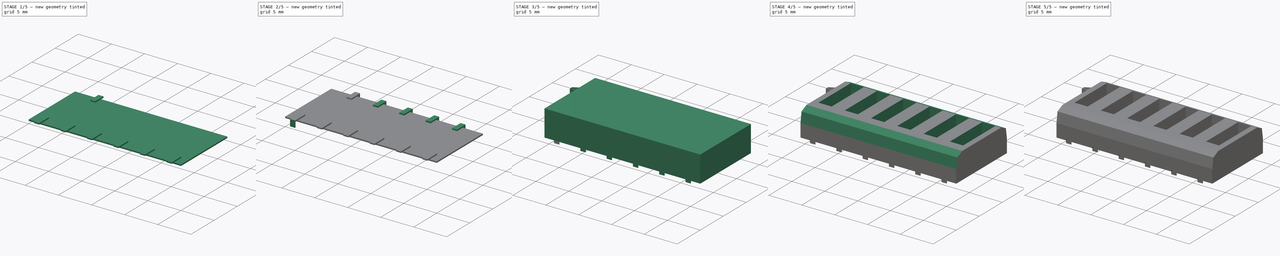
[diagram: build sequence overview — one tinted view per stage of 5, left to right]
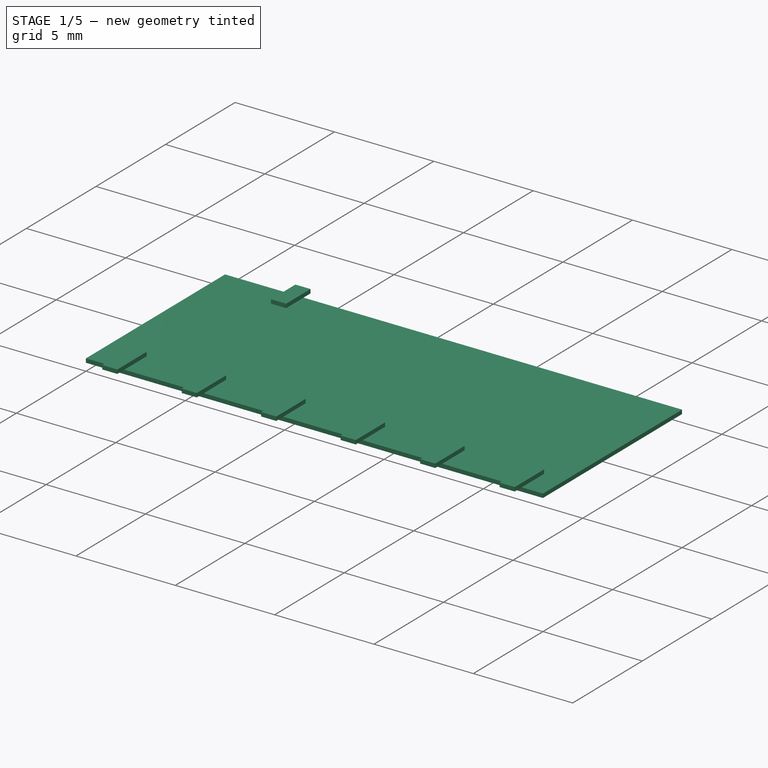
[diagram: stage 1 of 5 — iso view after this stage's code; geometry added in this stage tinted green]
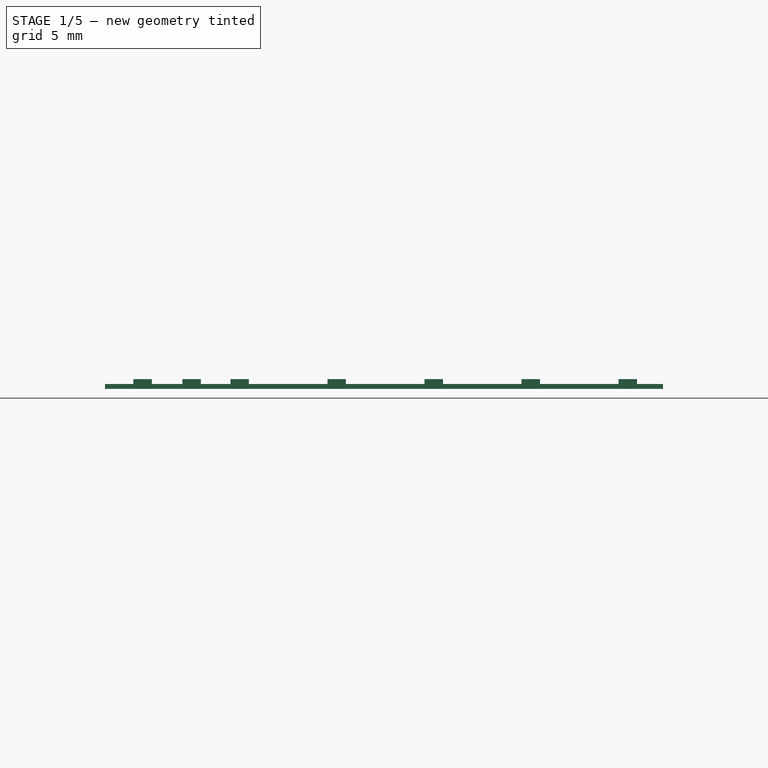
[diagram: stage 1 of 5 — front view after this stage's code; geometry added in this stage tinted green]
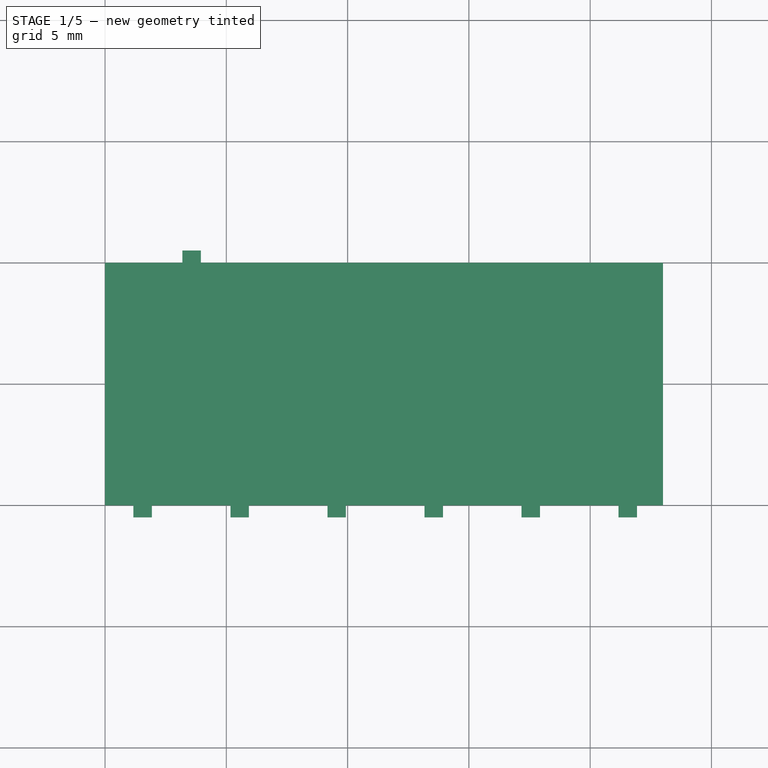
[diagram: stage 1 of 5 — top view after this stage's code; geometry added in this stage tinted green]
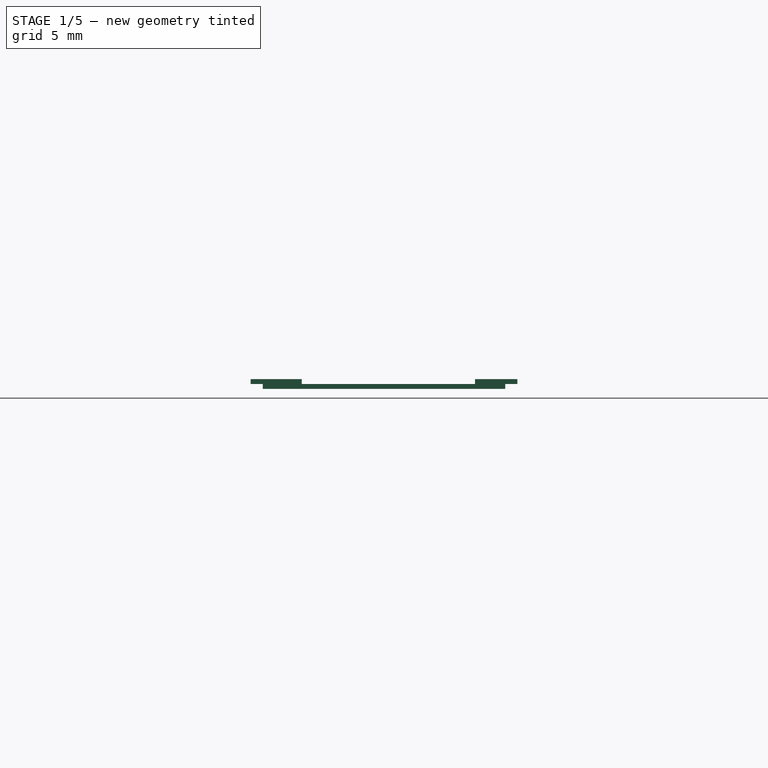
[diagram: stage 1 of 5 — right view after this stage's code; geometry added in this stage tinted green]
FCSTD DOCUMENT  (FreeCAD 0.19R24276 (Git))
Label: JL-6P-4.0PH-5.65H-1
License: All rights reserved
LicenseURL: http://en.wikipedia.org/wiki/All_rights_reserved
objects: Sketcher::SketchObject×10, PartDesign::Pad×7, PartDesign::LinearPattern×7, PartDesign::Pocket×3, PartDesign::Body×3, App::Part×3, PartDesign::Chamfer×2
note: 44 computed .brp shape members not serialized (recipe doc carries the construction recipe); baked Part::Feature solids carry a one-line shape summary decoded from their .brp

FEATURE [PartDesign::Body] Body001
  Group = -> [Sketch004,Pad001]
  Origin = -> Origin001
  Tip = -> Pad001
FEATURE [Sketcher::SketchObject] Sketch005
  FullyConstrained = true
  MapMode = 5
  Support = -> [XY_Plane002]
  sketch-geometry (4):
    g0: LineSegment StartX=0 StartY=0 StartZ=0 EndX=23 EndY=0 EndZ=0
    g1: LineSegment StartX=23 StartY=0 StartZ=0 EndX=23 EndY=-10 EndZ=0
    g2: LineSegment StartX=23 StartY=-10 StartZ=0 EndX=0 EndY=-10 EndZ=0
    g3: LineSegment StartX=0 StartY=-10 StartZ=0 EndX=0 EndY=0 EndZ=0
  constraints (11):
    c: Coincident(g0,g1)
    c: Coincident(g1,g2)
    c: Coincident(g2,g3)
    c: Coincident(g3,g0)
    c: Horizontal(g0)
    c: Horizontal(g2)
    c: Vertical(g1)
    c: Vertical(g3)
    c: DistanceX(g0,g0) = 23
    c: DistanceY(g3,g3) = 10
    c: Coincident(g0,g-1)
FEATURE [PartDesign::Pad] Pad002
  Direction = (1,1,1)
  Length = 0.2
  Length2 = 100
  Profile = -> Sketch005
  Type = 0
FEATURE [Sketcher::SketchObject] Sketch006
  ExternalGeometry = -> [Pad002]
  FullyConstrained = true
  MapMode = 5
  Placement = pos=(0,0,0.2) rot=(0,0,1;0rad)
  Support = -> [Pad002]
  sketch-geometry (4):
    g0: LineSegment StartX=1.17 StartY=-8.39 StartZ=0 EndX=1.93 EndY=-8.39 EndZ=0
    g1: LineSegment StartX=1.93 StartY=-8.39 StartZ=0 EndX=1.93 EndY=-10.5 EndZ=0
    g2: LineSegment StartX=1.93 StartY=-10.5 StartZ=0 EndX=1.17 EndY=-10.5 EndZ=0
    g3: LineSegment StartX=1.17 StartY=-10.5 StartZ=0 EndX=1.17 EndY=-8.39 EndZ=0
  constraints (12):
    c: Coincident(g0,g1)
    c: Coincident(g1,g2)
    c: Coincident(g2,g3)
    c: Coincident(g3,g0)
    c: Horizontal(g0)
    c: Horizontal(g2)
    c: Vertical(g1)
    c: Vertical(g3)
    c: DistanceX(g0,g0) = 0.76
    c: DistanceY(g3,g3) = 2.11
    c: DistanceX(g-2,g2) = 1.17
    c: Distance(g2,g-3) = 0.5
FEATURE [PartDesign::Pad] Pad003
  BaseFeature = -> Pad002
  Direction = (1,1,1)
  Length = 0.2
  Length2 = 100
  Profile = -> Sketch006
  Type = 0
FEATURE [PartDesign::LinearPattern] LinearPattern003
  BaseFeature = -> Pad003
  Direction = -> Sketch006 [H_Axis]
  Length = 20
  Occurrences = 6
  Originals = -> [Pad003]
FEATURE [Sketcher::SketchObject] Sketch007
  FullyConstrained = true
  MapMode = 5
  Placement = pos=(0,0,0.2) rot=(0,0,1;0rad)
  Support = -> [LinearPattern003]
  sketch-geometry (4):
    g0: LineSegment StartX=3.19 StartY=0.5 StartZ=0 EndX=3.95 EndY=0.5 EndZ=0
    g1: LineSegment StartX=3.95 StartY=0.5 StartZ=0 EndX=3.95 EndY=-1.25 EndZ=0
    g2: LineSegment StartX=3.95 StartY=-1.25 StartZ=0 EndX=3.19 EndY=-1.25 EndZ=0
    g3: LineSegment StartX=3.19 StartY=-1.25 StartZ=0 EndX=3.19 EndY=0.5 EndZ=0
  constraints (12):
    c: Coincident(g0,g1)
    c: Coincident(g1,g2)
    c: Coincident(g2,g3)
    c: Coincident(g3,g0)
    c: Horizontal(g0)
    c: Horizontal(g2)
    c: Vertical(g1)
    c: Vertical(g3)
    c: DistanceX(g0,g0) = 0.76
    c: DistanceY(g3,g3) = 1.75
    c: DistanceX(g-2,g0) = 3.19
    c: Distance(g0,g-1) = 0.5
FEATURE [PartDesign::Pad] Pad004
  BaseFeature = -> LinearPattern003
  Direction = (1,1,1)
  Length = 0.2
  Length2 = 100
  Profile = -> Sketch007
  Type = 0
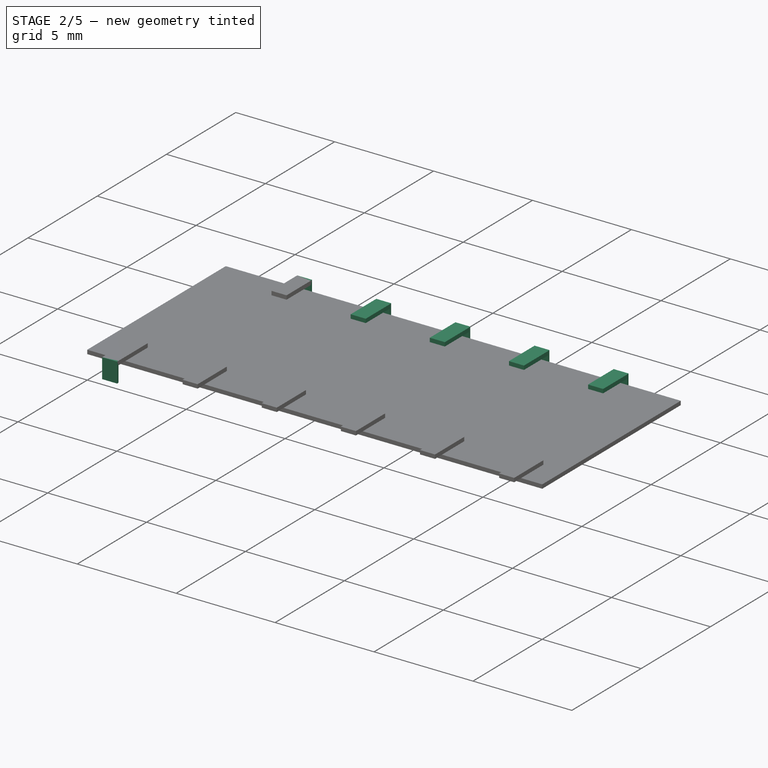
[diagram: stage 2 of 5 — iso view after this stage's code; geometry added in this stage tinted green]
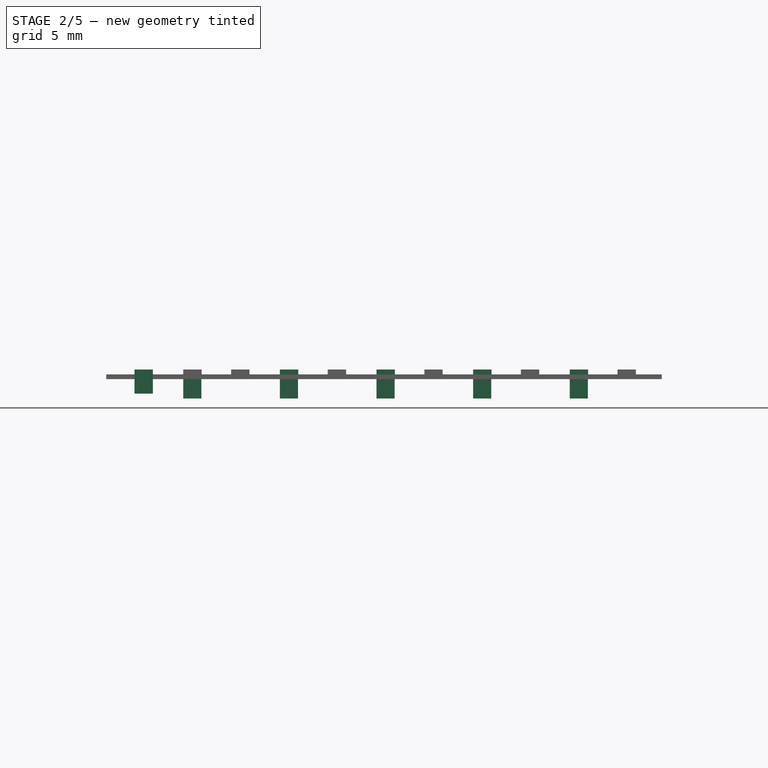
[diagram: stage 2 of 5 — front view after this stage's code; geometry added in this stage tinted green]
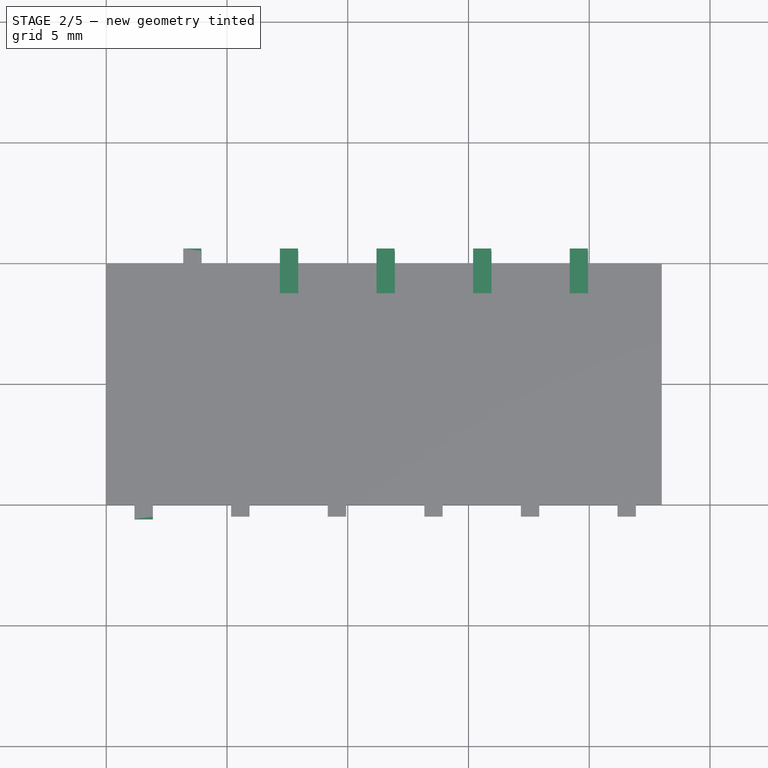
[diagram: stage 2 of 5 — top view after this stage's code; geometry added in this stage tinted green]
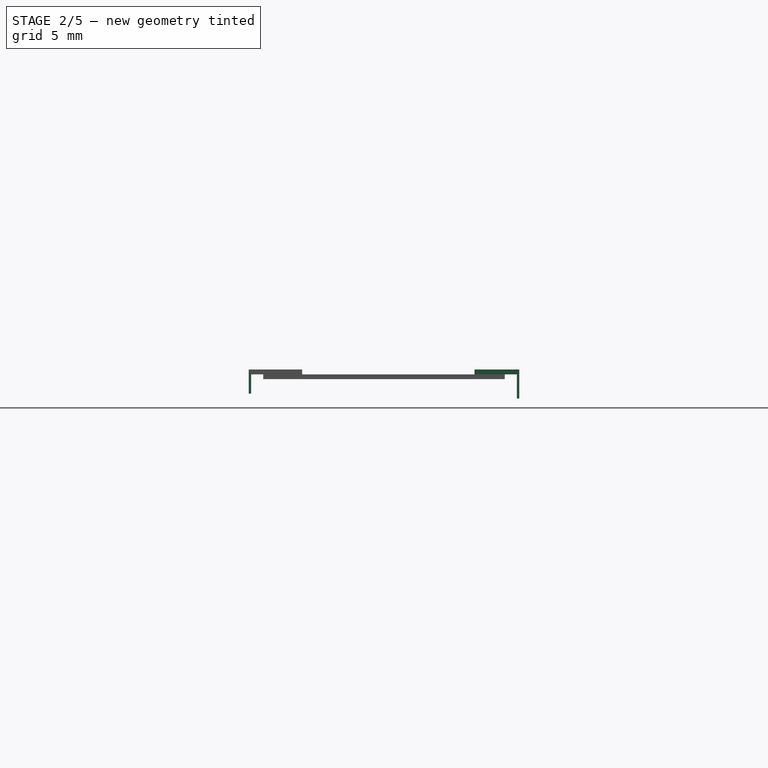
[diagram: stage 2 of 5 — right view after this stage's code; geometry added in this stage tinted green]
FEATURE [PartDesign::LinearPattern] LinearPattern004
  BaseFeature = -> Pad004
  Direction = -> X_Axis002
  Length = 16
  Occurrences = 5
  Originals = -> [Pad004]
FEATURE [Sketcher::SketchObject] Sketch008
  ExternalGeometry = -> [LinearPattern004]
  FullyConstrained = true
  MapMode = 5
  Placement = pos=(0,0,0.2) rot=(0,0,1;0rad)
  Support = -> [LinearPattern004]
  sketch-geometry (4):
    g0: LineSegment StartX=3.19 StartY=0.6 StartZ=0 EndX=3.94 EndY=0.6 EndZ=0
    g1: LineSegment StartX=3.94 StartY=0.6 StartZ=0 EndX=3.94 EndY=0.5 EndZ=0
    g2: LineSegment StartX=3.94 StartY=0.5 StartZ=0 EndX=3.19 EndY=0.5 EndZ=0
    g3: LineSegment StartX=3.19 StartY=0.5 StartZ=0 EndX=3.19 EndY=0.6 EndZ=0
  constraints (12):
    c: Coincident(g0,g1)
    c: Coincident(g1,g2)
    c: Coincident(g2,g3)
    c: Coincident(g3,g0)
    c: Horizontal(g0)
    c: Horizontal(g2)
    c: Vertical(g1)
    c: Vertical(g3)
    c: DistanceY(g3,g3) = 0.1
    c: DistanceX(g0,g0) = 0.75
    c: PointOnObject(g-3,g3)
    c: PointOnObject(g2,g-4)
FEATURE [PartDesign::Pad] Pad005
  BaseFeature = -> LinearPattern004
  Direction = (1,1,1)
  Length = 0.2
  Length2 = 1
  Profile = -> Sketch008
  Reversed = true
  Type = 4
FEATURE [PartDesign::LinearPattern] LinearPattern005
  BaseFeature = -> Pad005
  Direction = -> Sketch008 [H_Axis]
  Length = 16
  Occurrences = 5
  Originals = -> [Pad005]
FEATURE [App::Part] Part
  Group = -> [Body]
  Origin = -> Origin003
FEATURE [App::Part] Part001
  Group = -> [Body001]
  Origin = -> Origin004
FEATURE [Sketcher::SketchObject] Sketch009
  ExternalGeometry = -> [LinearPattern005]
  FullyConstrained = true
  MapMode = 5
  Placement = pos=(0,0,0.4) rot=(0,0,1;0rad)
  Support = -> [LinearPattern005]
  sketch-geometry (4):
    g0: LineSegment StartX=1.17 StartY=-10.5 StartZ=0 EndX=1.93 EndY=-10.5 EndZ=0
    g1: LineSegment StartX=1.93 StartY=-10.5 StartZ=0 EndX=1.93 EndY=-10.6 EndZ=0
    g2: LineSegment StartX=1.93 StartY=-10.6 StartZ=0 EndX=1.17 EndY=-10.6 EndZ=0
    g3: LineSegment StartX=1.17 StartY=-10.6 StartZ=0 EndX=1.17 EndY=-10.5 EndZ=0
  constraints (11):
    c: Coincident(g0,g1)
    c: Coincident(g1,g2)
    c: Coincident(g2,g3)
    c: Coincident(g3,g0)
    c: Horizontal(g0)
    c: Horizontal(g2)
    c: Vertical(g1)
    c: Vertical(g3)
    c: Coincident(g0,g-3)
    c: PointOnObject(g-3,g1)
    c: DistanceY(g3,g3) = 0.1
FEATURE [PartDesign::Pad] Pad006
  BaseFeature = -> LinearPattern005
  Direction = (1,1,1)
  Length = 1
  Length2 = 100
  Profile = -> Sketch009
  Reversed = true
  Type = 0
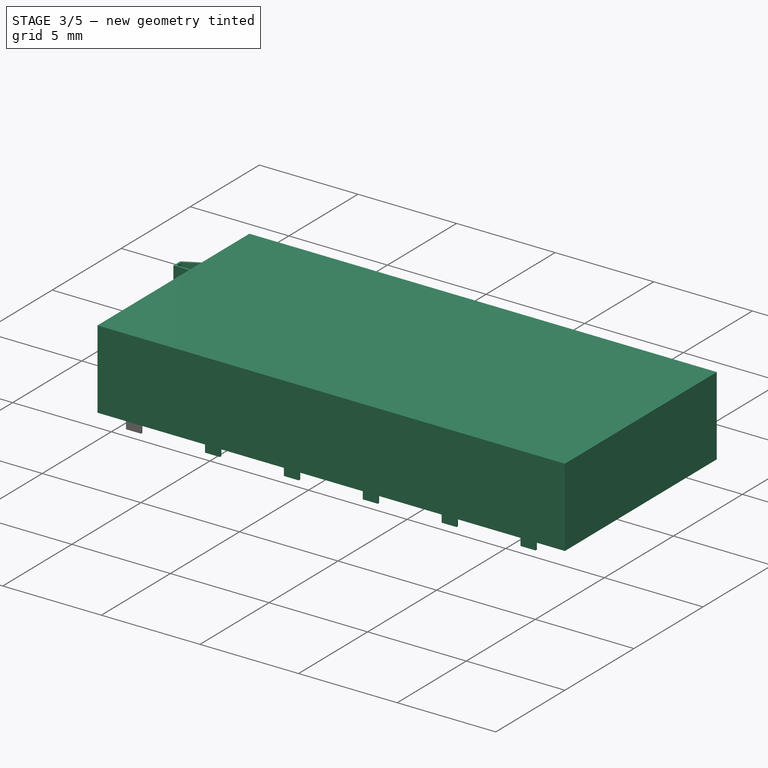
[diagram: stage 3 of 5 — iso view after this stage's code; geometry added in this stage tinted green]
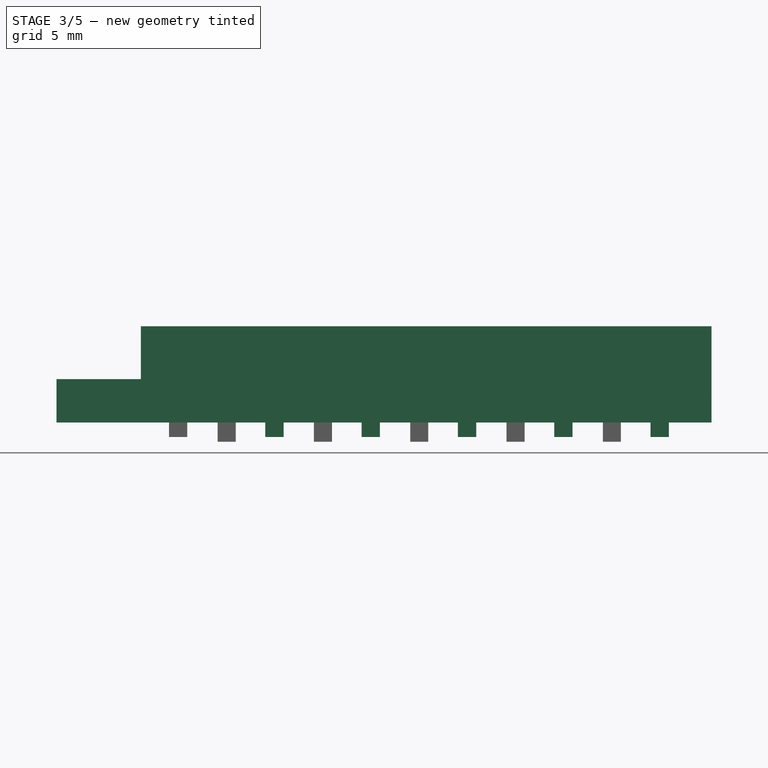
[diagram: stage 3 of 5 — front view after this stage's code; geometry added in this stage tinted green]
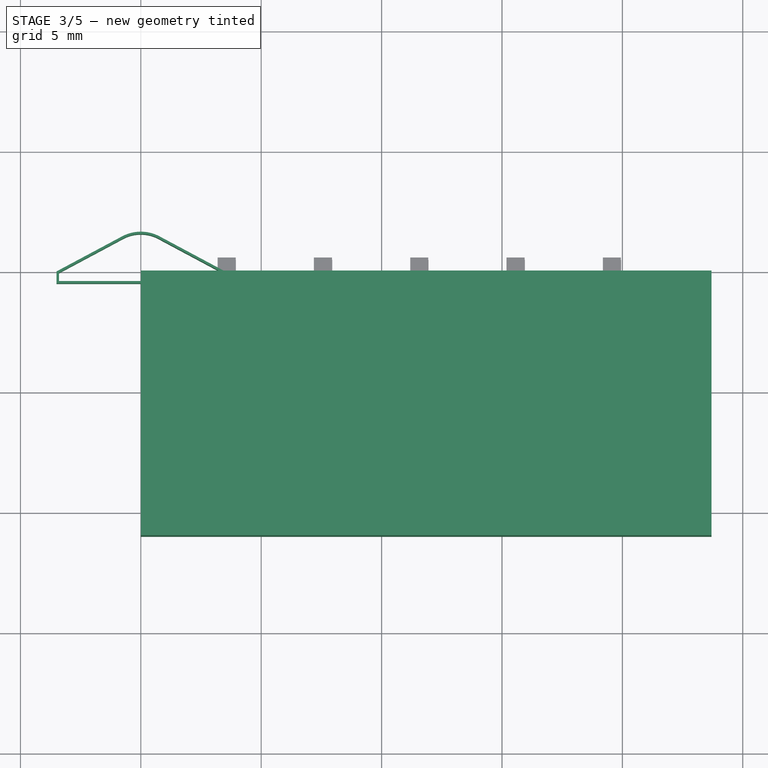
[diagram: stage 3 of 5 — top view after this stage's code; geometry added in this stage tinted green]
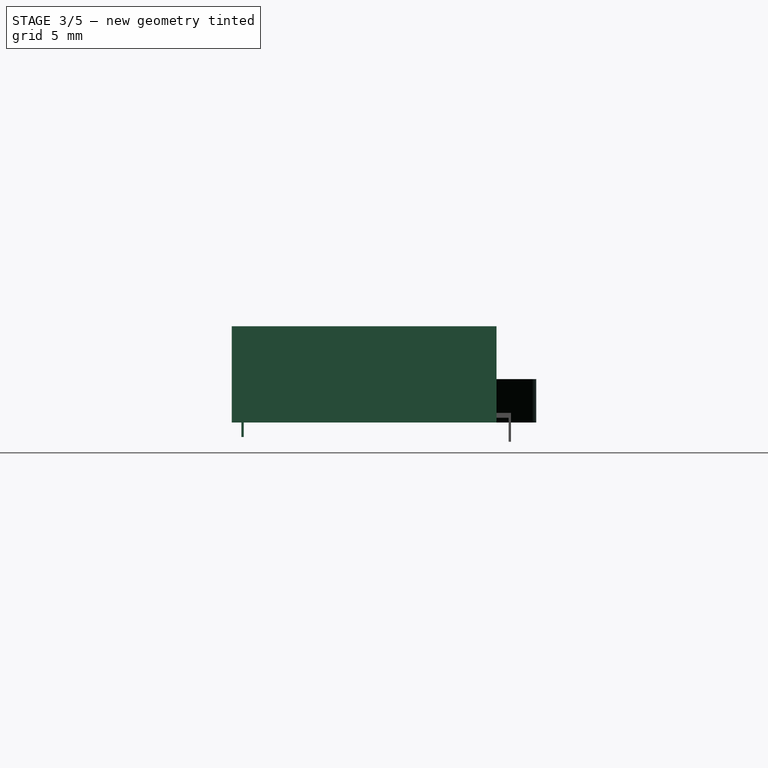
[diagram: stage 3 of 5 — right view after this stage's code; geometry added in this stage tinted green]
FEATURE [Sketcher::SketchObject] Sketch
  FullyConstrained = true
  MapMode = 5
  Support = -> [XY_Plane]
  sketch-geometry (4):
    g0: LineSegment StartX=0 StartY=0 StartZ=0 EndX=23.7 EndY=0 EndZ=0
    g1: LineSegment StartX=23.7 StartY=0 StartZ=0 EndX=23.7 EndY=-11 EndZ=0
    g2: LineSegment StartX=23.7 StartY=-11 StartZ=0 EndX=0 EndY=-11 EndZ=0
    g3: LineSegment StartX=0 StartY=-11 StartZ=0 EndX=0 EndY=0 EndZ=0
  constraints (11):
    c: Coincident(g0,g1)
    c: Coincident(g1,g2)
    c: Coincident(g2,g3)
    c: Coincident(g3,g0)
    c: Horizontal(g0)
    c: Horizontal(g2)
    c: Vertical(g1)
    c: Vertical(g3)
    c: DistanceX(g0,g0) = 23.7
    c: DistanceY(g3,g3) = 11
    c: Coincident(g0,g-1)
FEATURE [PartDesign::Pad] Pad
  Direction = (1,1,1)
  Length = 4
  Length2 = 100
  Profile = -> Sketch
  Type = 0
FEATURE [PartDesign::Body] Body
  Group = -> [Sketch,Pad,Chamfer,Chamfer001,Sketch001,Pocket,LinearPattern,Sketch002,Pocket001,LinearPattern001,Sketch003,Pocket002,LinearPattern002]
  Origin = -> Origin
  Tip = -> LinearPattern002
FEATURE [Sketcher::SketchObject] Sketch004
  FullyConstrained = true
  MapMode = 5
  Support = -> [XY_Plane001]
  sketch-geometry (12):
    g0: ArcOfCircle CenterX=0 CenterY=0 CenterZ=0 NormalX=0 NormalY=0 NormalZ=1 AngleXU=0 Radius=1.65 StartAngle=1.07989 EndAngle=2.06171
    g1: LineSegment StartX=-0.777857 StartY=1.45514 StartZ=0 EndX=-3.5 EndY=0 EndZ=0
    g2: LineSegment StartX=0.777857 StartY=1.45514 StartZ=0 EndX=3.5 EndY=0 EndZ=0
    g3: LineSegment StartX=-3.5 StartY=0 StartZ=0 EndX=-3.5 EndY=-0.5 EndZ=0
    g4: LineSegment StartX=-3.5 StartY=-0.5 StartZ=0 EndX=3.5 EndY=-0.5 EndZ=0
    g5: LineSegment StartX=3.5 StartY=-0.5 StartZ=0 EndX=3.5 EndY=0 EndZ=0
    g6: LineSegment StartX=-0.730725 StartY=1.36695 StartZ=0 EndX=-3.4 EndY=-0.0599352 EndZ=0
    g7: LineSegment StartX=-3.4 StartY=-0.0599352 StartZ=0 EndX=-3.4 EndY=-0.4 EndZ=0
    g8: LineSegment StartX=3.4 StartY=-0.0599352 StartZ=0 EndX=0.730714 EndY=1.36695 EndZ=0
    g9: ArcOfCircle CenterX=0 CenterY=0 CenterZ=0 NormalX=0 NormalY=0 NormalZ=1 AngleXU=0 Radius=1.55 StartAngle=1.07989 EndAngle=2.06171
    g10: LineSegment StartX=3.4 StartY=-0.0599352 StartZ=0 EndX=3.4 EndY=-0.4 EndZ=0
    g11: LineSegment StartX=-3.4 StartY=-0.4 StartZ=0 EndX=3.4 EndY=-0.4 EndZ=0
  constraints (32):
    c: Coincident(g0,g-1)
    c: Radius(g0) = 1.65
    c: Vertical(g3)
    c: Coincident(g4,g3)
    c: Horizontal(g4)
    c: Coincident(g5,g4)
    c: Vertical(g5)
    c: DistanceX(g4,g4) = 7
    c: Symmetric(g5,g3,g-2)
    c: PointOnObject(g3,g-1)
    c: DistanceY(g3,g3) = 0.5
    c: Tangent(g0,g2) = 1.5708
    c: Tangent(g1,g0) = -1.5708
    c: Coincident(g1,g3)
    c: Coincident(g2,g5)
    c: Coincident(g7,g6)
    c: Vertical(g7)
    c: Parallel(g6,g1)
    c: Parallel(g8,g2)
    c: Distance(g7,g4) = 0.1
    c: Coincident(g9,g6) = -1.5708
    c: Tangent(g9,g8) = -1.5708
    c: Coincident(g10,g8)
    c: Vertical(g10)
    c: Coincident(g11,g7)
    c: Coincident(g11,g10)
    c: Horizontal(g11)
    c: Equal(g10,g7)
    c: Distance(g6,g1) = 0.1
    c: Distance(g8,g2) = 0.1
    c: Distance(g6,g3) = 0.1
    c: Coincident(g9,g0)
FEATURE [PartDesign::Pad] Pad001
  Direction = (1,1,1)
  Length = 1.8
  Length2 = 100
  Profile = -> Sketch004
  Type = 0
FEATURE [PartDesign::LinearPattern] LinearPattern006
  BaseFeature = -> Pad006
  Direction = -> Sketch009 [H_Axis]
  Length = 20
  Occurrences = 6
  Originals = -> [Pad006]
FEATURE [PartDesign::Body] Body002
  Group = -> [Sketch005,Pad002,Sketch006,Pad003,LinearPattern003,Sketch007,Pad004,LinearPattern004,Sketch008,Pad005,LinearPattern005,Sketch009,Pad006,LinearPattern006]
  Origin = -> Origin002
  Tip = -> LinearPattern006
FEATURE [App::Part] Part002
  Group = -> [Body002]
  Origin = -> Origin005
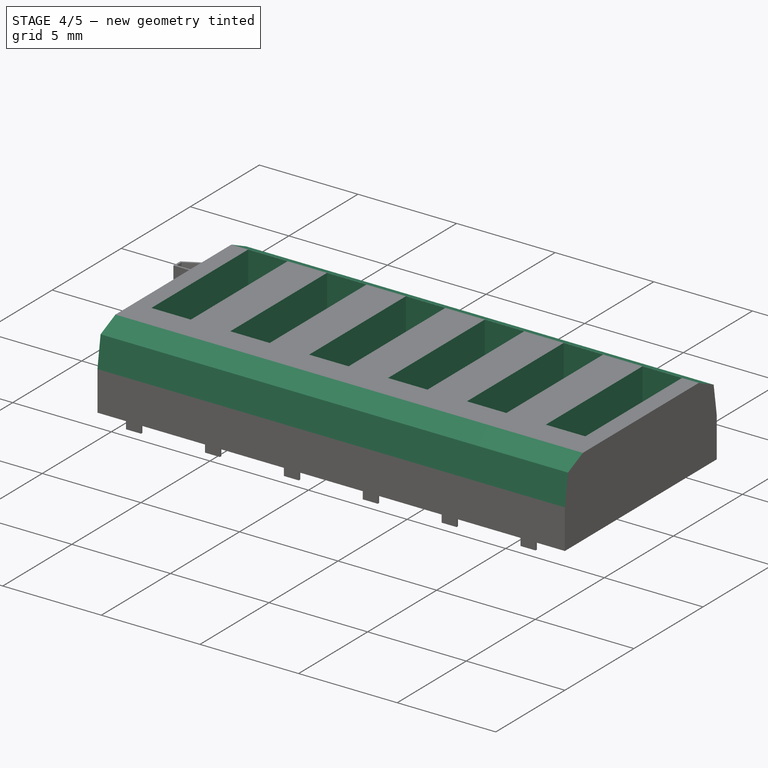
[diagram: stage 4 of 5 — iso view after this stage's code; geometry added in this stage tinted green]
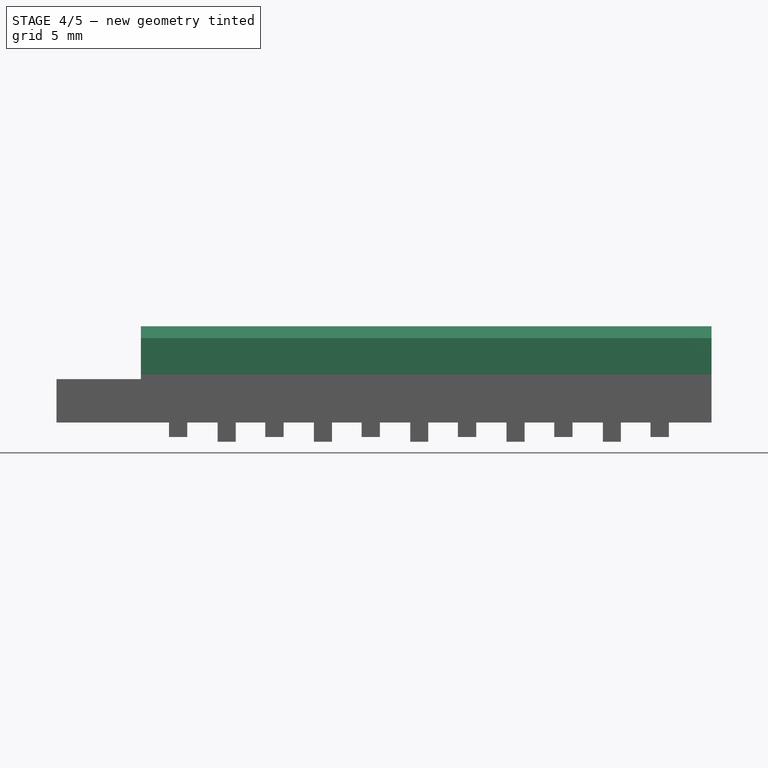
[diagram: stage 4 of 5 — front view after this stage's code; geometry added in this stage tinted green]
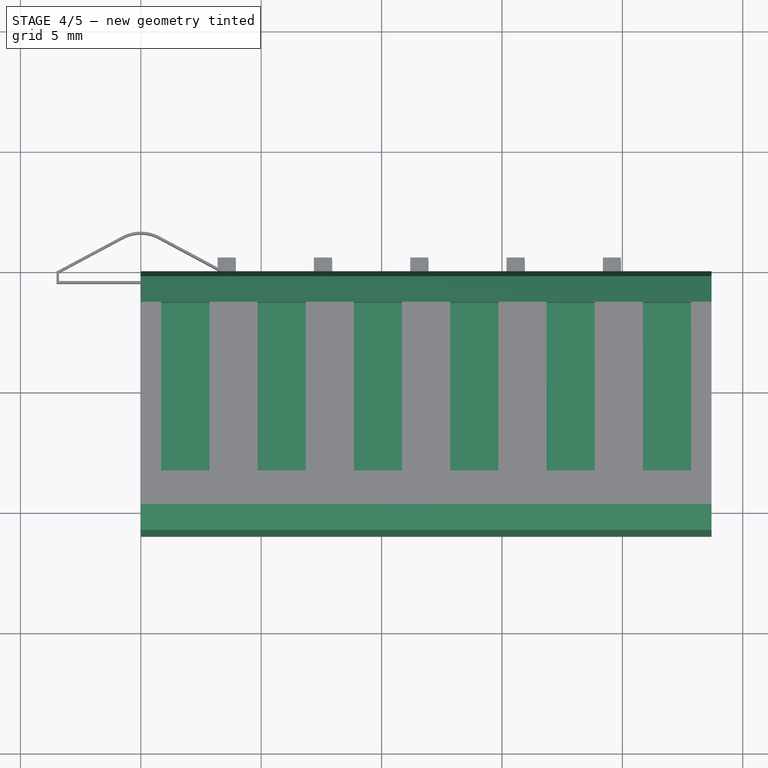
[diagram: stage 4 of 5 — top view after this stage's code; geometry added in this stage tinted green]
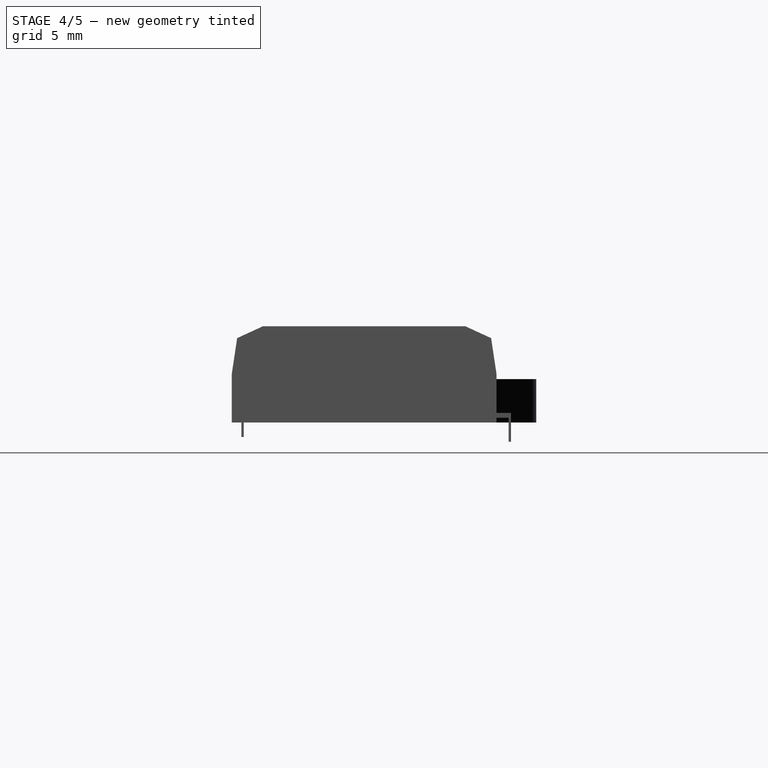
[diagram: stage 4 of 5 — right view after this stage's code; geometry added in this stage tinted green]
FEATURE [PartDesign::Chamfer] Chamfer
  Angle = 45
  Base = -> Pad [Edge10,Edge4]
  BaseFeature = -> Pad
  ChamferType = 1
  FlipDirection = false
  Size = 2
  Size2 = 0.3
  SupportTransform = false
FEATURE [PartDesign::Chamfer] Chamfer001
  Angle = 45
  Base = -> Chamfer [Edge18,Edge10]
  BaseFeature = -> Chamfer
  ChamferType = 1
  FlipDirection = false
  Size = 0.5
  Size2 = 1
  SupportTransform = false
FEATURE [Sketcher::SketchObject] Sketch001
  FullyConstrained = false
  MapMode = 5
  Placement = pos=(0,0,4) rot=(0,0,1;0rad)
  Support = -> [Chamfer001]
  sketch-geometry (4):
    g0: LineSegment StartX=0.85 StartY=-1.30747 StartZ=0 EndX=2.85 EndY=-1.30747 EndZ=0
    g1: LineSegment StartX=2.85 StartY=-1.30747 StartZ=0 EndX=2.85 EndY=-8.30747 EndZ=0
    g2: LineSegment StartX=2.85 StartY=-8.30747 StartZ=0 EndX=0.85 EndY=-8.30747 EndZ=0
    g3: LineSegment StartX=0.85 StartY=-8.30747 StartZ=0 EndX=0.85 EndY=-1.30747 EndZ=0
  constraints (11):
    c: Coincident(g0,g1)
    c: Coincident(g1,g2)
    c: Coincident(g2,g3)
    c: Coincident(g3,g0)
    c: Horizontal(g0)
    c: Horizontal(g2)
    c: Vertical(g1)
    c: Vertical(g3)
    c: DistanceX(g0,g0) = 2
    c: DistanceY(g3,g3) = 7
    c: Distance(g0,g-2) = 0.85
FEATURE [PartDesign::Pocket] Pocket
  BaseFeature = -> Chamfer001
  Length = 2
  Length2 = 100
  Profile = -> Sketch001
  Type = 0
FEATURE [PartDesign::LinearPattern] LinearPattern
  BaseFeature = -> Pocket
  Direction = -> X_Axis
  Length = 20
  Occurrences = 6
  Originals = -> [Pocket]
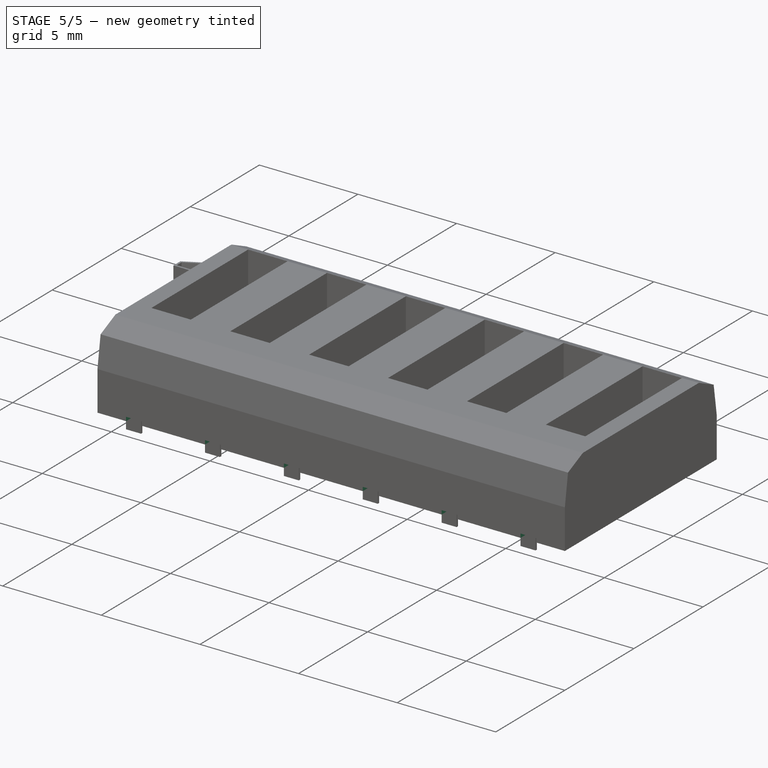
[diagram: stage 5 of 5 — iso view after this stage's code; geometry added in this stage tinted green]
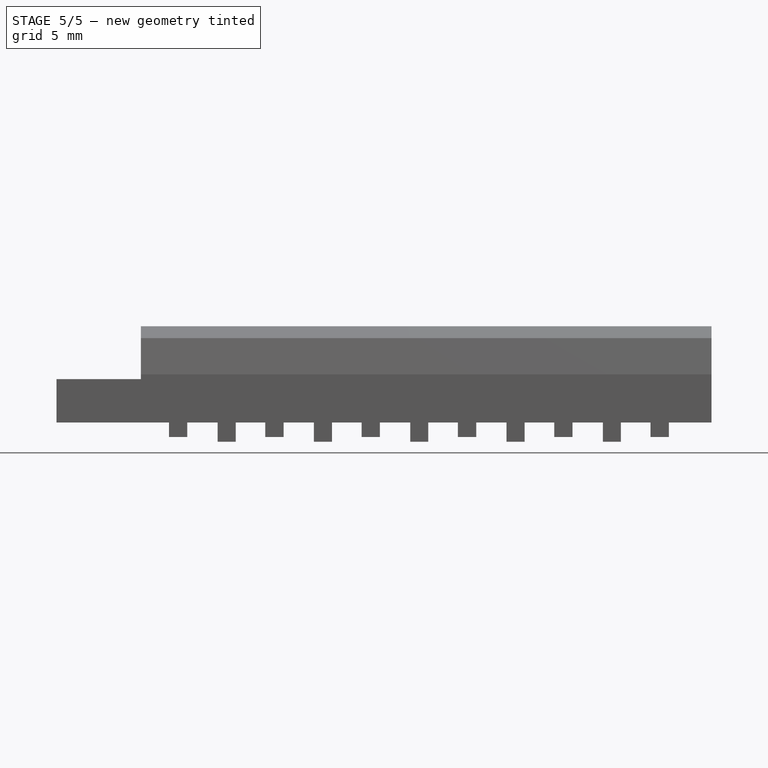
[diagram: stage 5 of 5 — front view after this stage's code; geometry added in this stage tinted green]
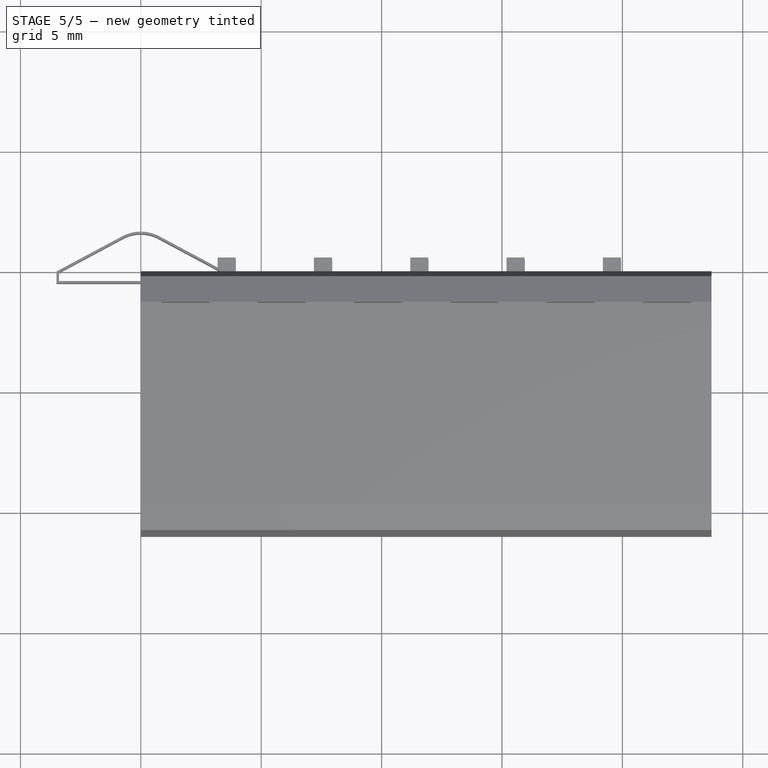
[diagram: stage 5 of 5 — top view after this stage's code; geometry added in this stage tinted green]
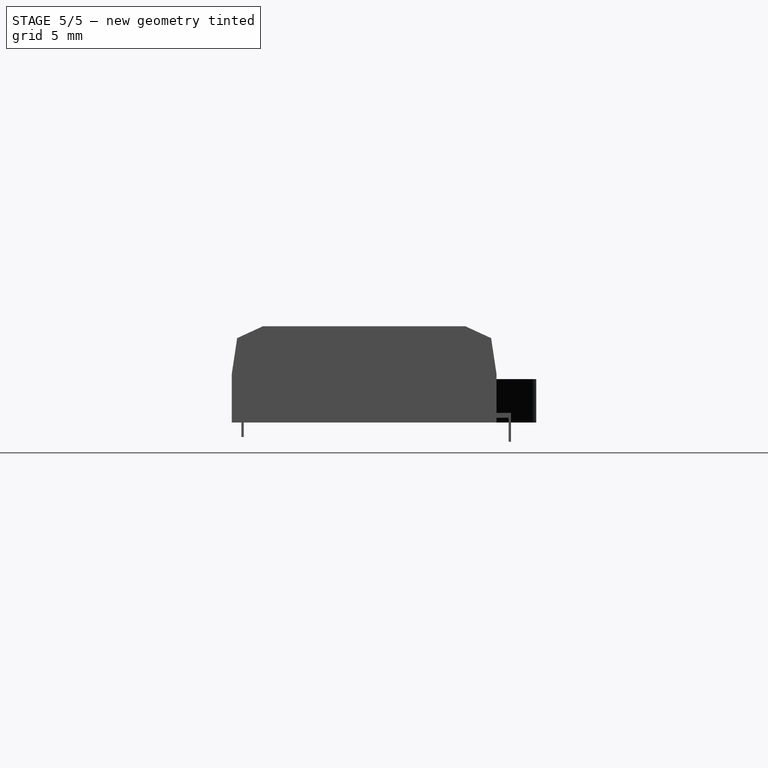
[diagram: stage 5 of 5 — right view after this stage's code; geometry added in this stage tinted green]
FEATURE [Sketcher::SketchObject] Sketch002
  ExternalGeometry = -> [LinearPattern]
  FullyConstrained = true
  MapMode = 5
  Placement = pos=(0,0,0) rot=(1,0,0;3.14159rad)
  Support = -> [LinearPattern]
  sketch-geometry (4):
    g0: LineSegment StartX=1.45 StartY=11 StartZ=0 EndX=2.25 EndY=11 EndZ=0
    g1: LineSegment StartX=2.25 StartY=11 StartZ=0 EndX=2.25 EndY=8.8 EndZ=0
    g2: LineSegment StartX=2.25 StartY=8.8 StartZ=0 EndX=1.45 EndY=8.8 EndZ=0
    g3: LineSegment StartX=1.45 StartY=8.8 StartZ=0 EndX=1.45 EndY=11 EndZ=0
  constraints (12):
    c: Coincident(g0,g1)
    c: Coincident(g1,g2)
    c: Coincident(g2,g3)
    c: Coincident(g3,g0)
    c: Horizontal(g0)
    c: Horizontal(g2)
    c: Vertical(g1)
    c: Vertical(g3)
    c: PointOnObject(g0,g-3)
    c: DistanceX(g2,g2) = 0.8
    c: DistanceY(g1,g1) = 2.2
    c: Distance(g0,g-2) = 1.45
FEATURE [PartDesign::Pocket] Pocket001
  BaseFeature = -> LinearPattern
  Length = 0.2
  Length2 = 100
  Profile = -> Sketch002
  Type = 0
FEATURE [PartDesign::LinearPattern] LinearPattern001
  BaseFeature = -> Pocket001
  Direction = -> Sketch002 [H_Axis]
  Length = 20
  Occurrences = 6
  Originals = -> [Pocket001]
FEATURE [Sketcher::SketchObject] Sketch003
  FullyConstrained = true
  MapMode = 5
  Placement = pos=(0,0,0) rot=(1,0,0;3.14159rad)
  Support = -> [LinearPattern001]
  sketch-geometry (4):
    g0: LineSegment StartX=3.25 StartY=1.8 StartZ=0 EndX=4.45 EndY=1.8 EndZ=0
    g1: LineSegment StartX=4.45 StartY=1.8 StartZ=0 EndX=4.45 EndY=0 EndZ=0
    g2: LineSegment StartX=4.45 StartY=0 StartZ=0 EndX=3.25 EndY=0 EndZ=0
    g3: LineSegment StartX=3.25 StartY=0 StartZ=0 EndX=3.25 EndY=1.8 EndZ=0
  constraints (12):
    c: Coincident(g0,g1)
    c: Coincident(g1,g2)
    c: Coincident(g2,g3)
    c: Coincident(g3,g0)
    c: Horizontal(g0)
    c: Horizontal(g2)
    c: Vertical(g1)
    c: Vertical(g3)
    c: DistanceX(g0,g0) = 1.2
    c: DistanceY(g3,g3) = 1.8
    c: PointOnObject(g2,g-1)
    c: Distance(g2,g-2) = 3.25
FEATURE [PartDesign::Pocket] Pocket002
  BaseFeature = -> LinearPattern001
  Length = 0.2
  Length2 = 100
  Profile = -> Sketch003
  Type = 0
FEATURE [PartDesign::LinearPattern] LinearPattern002
  BaseFeature = -> Pocket002
  Direction = -> Sketch003 [H_Axis]
  Length = 16
  Occurrences = 5
  Originals = -> [Pocket002]
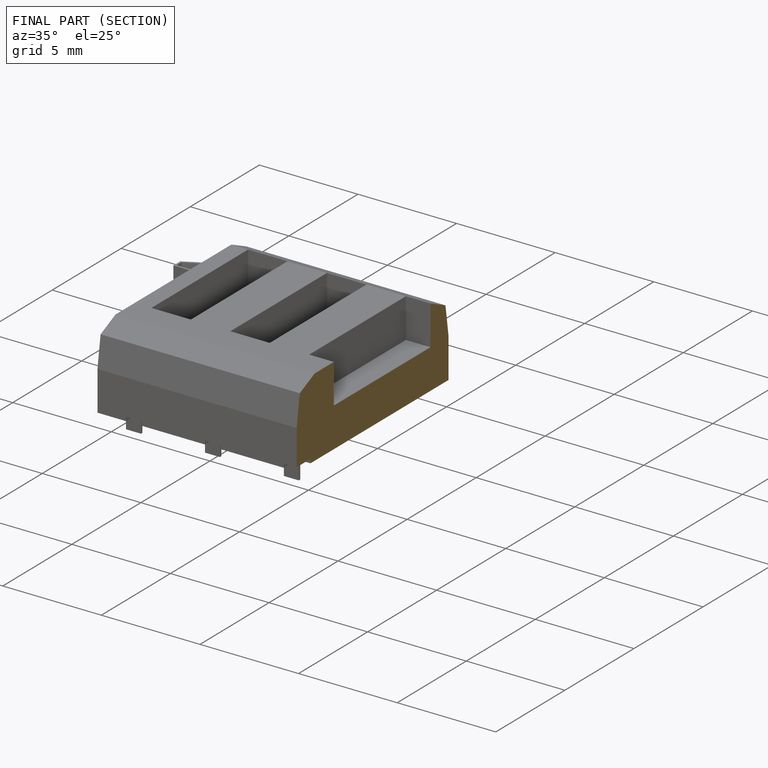
[diagram: finished part — half-section view (interior)]
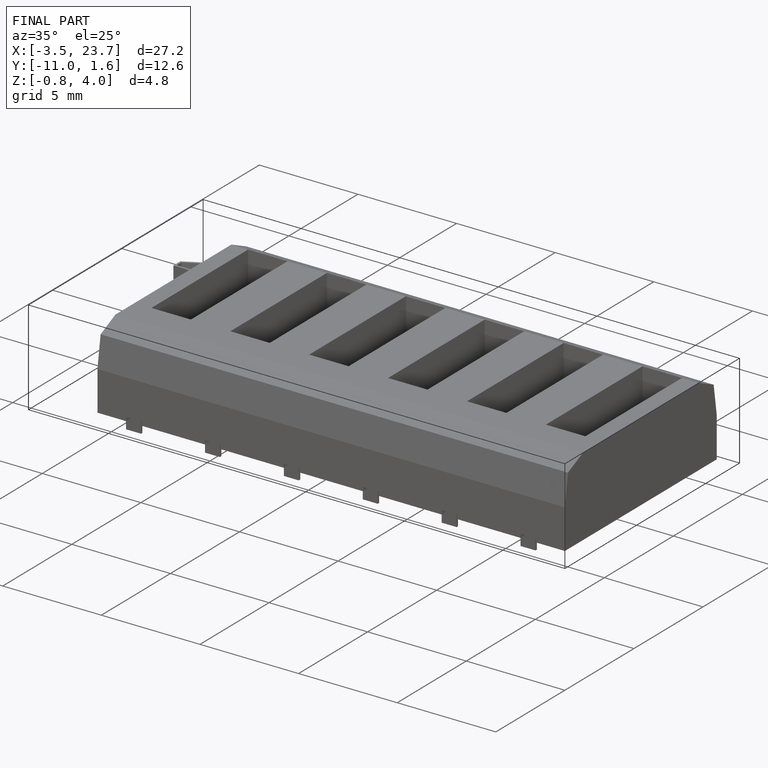
[diagram: finished part — iso view with bounding-box wireframe]
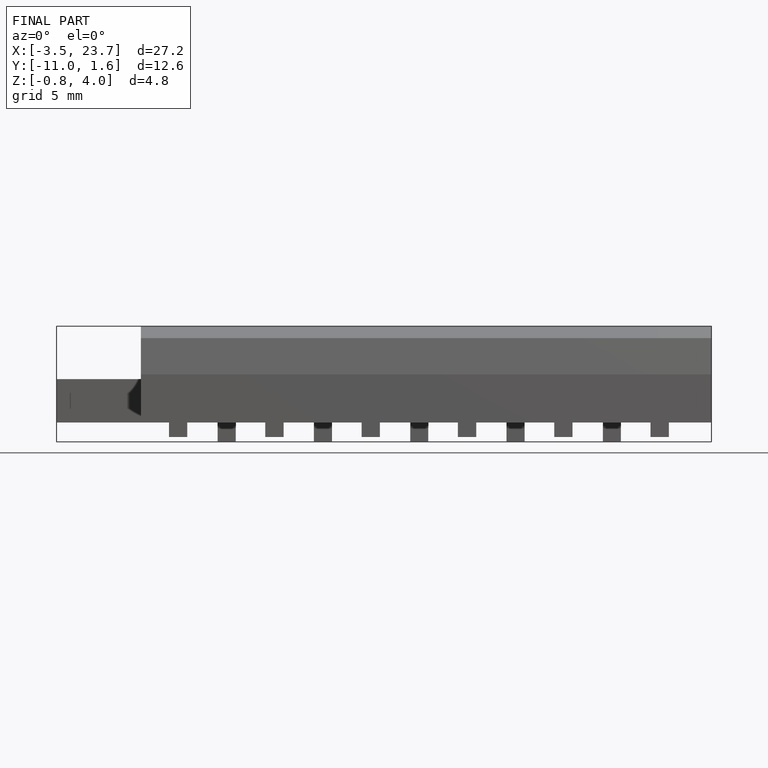
[diagram: finished part — front view with bounding-box wireframe]
